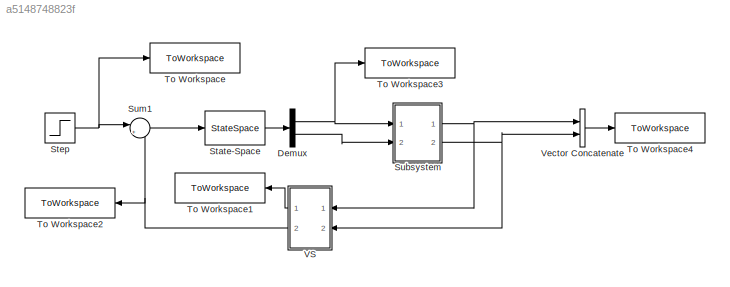
MODEL slx_a5148748823f
KIND model
CONFIG AbsTol = auto
CONFIG EnableMultiTasking = off
CONFIG FixedStep = auto
CONFIG MaxStep = auto
CONFIG MinStep = auto
CONFIG RelTol = 1e-3
CONFIG SampleTimeConstraint = Unconstrained
CONFIG SolverName = VariableStepAuto
CONFIG StartTime = 0.0
CONFIG StopTime = 10.0
BLOCK [Demux] Demux
  Outputs = 2
  Ports = [1, 2]
BLOCK [StateSpace] State-Space
  A = [0 1; -b -a]
  B = [0; 1]
  C = eye(2)
  D = zeros(2, 1)
  InitialCondition = [0 0]
  Ports = [1, 1]
BLOCK [Step] Step
  After = dist
  SampleTime = ss_st
  Time = t
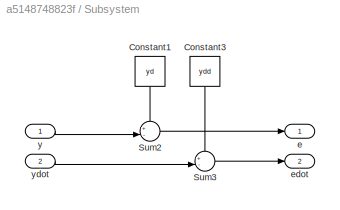
BLOCK [SubSystem] Subsystem
  Ports = [2, 2]
  RequestExecContextInheritance = off
BLOCK [Constant] Subsystem/Constant1
  NameLocation = left
  Value = yd
BLOCK [Constant] Subsystem/Constant3
  NameLocation = left
  Value = ydd
BLOCK [Sum] Subsystem/Sum2
  Inputs = +-|
  Ports = [2, 1]
BLOCK [Sum] Subsystem/Sum3
  Inputs = +-|
  Ports = [2, 1]
BLOCK [Outport] Subsystem/e
BLOCK [Outport] Subsystem/edot
  Port = 2
BLOCK [Inport] Subsystem/y
BLOCK [Inport] Subsystem/ydot
  Port = 2
BLOCK [Sum] Sum1
  Inputs = |++
  Ports = [2, 1]
BLOCK [ToWorkspace] To Workspace
  FixptAsFi = on
  MaxDataPoints = inf
  Ports = [1]
  SampleTime = -1
  SaveFormat = Timeseries
  VariableName = disturbance
BLOCK [ToWorkspace] To Workspace1
  FixptAsFi = on
  MaxDataPoints = inf
  NameLocation = top
  Ports = [1]
  SampleTime = -1
  SaveFormat = Timeseries
  VariableName = ss
BLOCK [ToWorkspace] To Workspace2
  FixptAsFi = on
  MaxDataPoints = inf
  NameLocation = top
  Ports = [1]
  SampleTime = -1
  SaveFormat = Timeseries
  VariableName = input
BLOCK [ToWorkspace] To Workspace3
  FixptAsFi = on
  MaxDataPoints = inf
  Ports = [1]
  SampleTime = -1
  SaveFormat = Timeseries
  VariableName = y
BLOCK [ToWorkspace] To Workspace4
  FixptAsFi = on
  MaxDataPoints = inf
  Ports = [1]
  SampleTime = -1
  SaveFormat = Timeseries
  VariableName = error
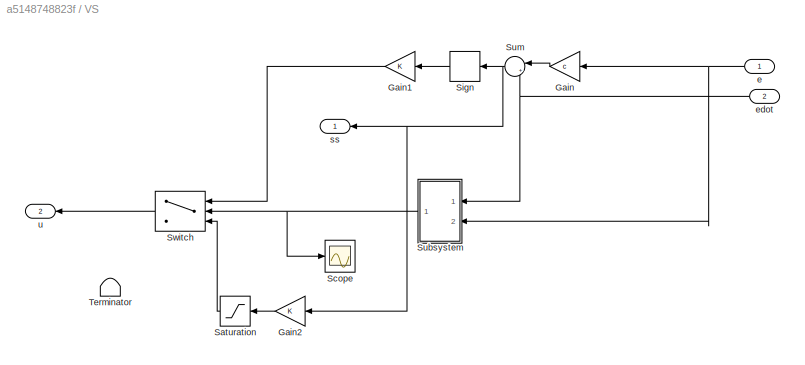
BLOCK [SubSystem] VS
  NameLocation = top
  Ports = [2, 2]
  RequestExecContextInheritance = off
BLOCK [Gain] VS/Gain
  Gain = c
  NameLocation = top
BLOCK [Gain] VS/Gain1
  Gain = K
  NameLocation = top
BLOCK [Gain] VS/Gain2
  Gain = K
  NameLocation = top
BLOCK [Saturate] VS/Saturation
  LowerLimit = -1000
  NameLocation = top
  UpperLimit = 1000
  ZeroCross = off
BLOCK [Scope] VS/Scope
  Floating = off
  NumInputPorts = 1
  Ports = [1]
  ScopeSpecificationString = Simulink.scopes.TimeScopeBlockCfg('CurrentConfiguration', extmgr.ConfigurationSet(extmgr.Configuration('Core','General UI',true),extmgr.Configuration('Core','Source UI',true),extmgr.Configuration('Sources','WiredSimulink',true),extmgr.Configuration('Visuals','Time Domain',true,'SerializedDisplays',{struct('MinYLimReal','-0.30129','MaxYLimReal','2.89444','YLabelReal','','MinYLimMag','0.00000','MaxY...<+1377ch>
BLOCK [Signum] VS/Sign
  NameLocation = top
  ZeroCross = off
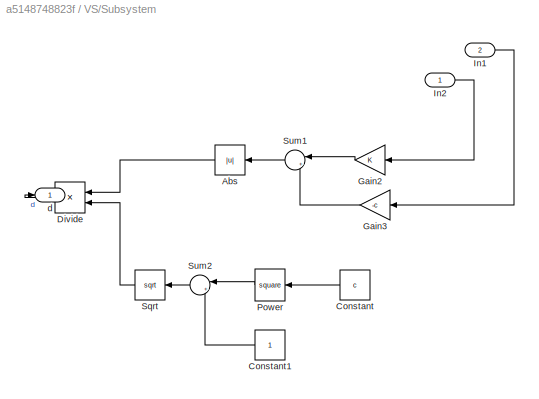
BLOCK [SubSystem] VS/Subsystem
  NameLocation = top
  Ports = [2, 1]
  RequestExecContextInheritance = off
BLOCK [Abs] VS/Subsystem/Abs
  NameLocation = top
  SaturateOnIntegerOverflow = off
BLOCK [Constant] VS/Subsystem/Constant
  NameLocation = top
  Value = c
BLOCK [Constant] VS/Subsystem/Constant1
  NameLocation = top
BLOCK [Product] VS/Subsystem/Divide
  Inputs = */
  NameLocation = top
  Ports = [2, 1]
BLOCK [Gain] VS/Subsystem/Gain2
  NameLocation = top
BLOCK [Gain] VS/Subsystem/Gain3
  Gain = -c
  NameLocation = top
BLOCK [Inport] VS/Subsystem/In1
  Port = 2
BLOCK [Inport] VS/Subsystem/In2
BLOCK [Math] VS/Subsystem/Power
  NameLocation = top
  Operator = square
  Ports = [1, 1]
BLOCK [Sqrt] VS/Subsystem/Sqrt
  NameLocation = top
BLOCK [Sum] VS/Subsystem/Sum1
  Inputs = |++
  NameLocation = top
  Ports = [2, 1]
BLOCK [Sum] VS/Subsystem/Sum2
  Inputs = |++
  NameLocation = top
  Ports = [2, 1]
BLOCK [Outport] VS/Subsystem/d
BLOCK [Sum] VS/Sum
  Inputs = |++
  NameLocation = top
  Ports = [2, 1]
BLOCK [Switch] VS/Switch
  Criteria = u2 > Threshold
  InputSameDT = off
  NameLocation = top
  SaturateOnIntegerOverflow = off
  Threshold = 0.5*b_w
  ZeroCross = off
BLOCK [Terminator] VS/Terminator
BLOCK [Inport] VS/e
  NameLocation = top
BLOCK [Inport] VS/edot
  NameLocation = top
  Port = 2
BLOCK [Outport] VS/ss
  NameLocation = top
BLOCK [Outport] VS/u
  NameLocation = top
  Port = 2
BLOCK [Concatenate] Vector Concatenate
  Ports = [2, 1]
NET Demux:1 -> Subsystem:1, To Workspace3:1
LINE Demux:2 -> Subsystem:2
LINE State-Space:1 -> Demux:1
NET Step:1 -> Sum1:1, To Workspace:1
LINE Subsystem/Constant1:1 -> Subsystem/Sum2:1
LINE Subsystem/Constant3:1 -> Subsystem/Sum3:1
LINE Subsystem/Sum2:1 -> Subsystem/e:1
LINE Subsystem/Sum3:1 -> Subsystem/edot:1
LINE Subsystem/y:1 -> Subsystem/Sum2:2
LINE Subsystem/ydot:1 -> Subsystem/Sum3:2
NET Subsystem:1 -> VS:1, Vector Concatenate:1
NET Subsystem:2 -> VS:2, Vector Concatenate:2
LINE Sum1:1 -> State-Space:1
LINE VS/Gain1:1 -> VS/Switch:1
LINE VS/Gain2:1 -> VS/Saturation:1
LINE VS/Gain:1 -> VS/Sum:1
LINE VS/Saturation:1 -> VS/Switch:3
LINE VS/Sign:1 -> VS/Gain1:1
LINE VS/Subsystem/Abs:1 -> VS/Subsystem/Divide:1
LINE VS/Subsystem/Constant1:1 -> VS/Subsystem/Sum2:2
LINE VS/Subsystem/Constant:1 -> VS/Subsystem/Power:1
LINE VS/Subsystem/Divide:1 -> VS/Subsystem/d:1
LINE VS/Subsystem/Gain2:1 -> VS/Subsystem/Sum1:1
LINE VS/Subsystem/Gain3:1 -> VS/Subsystem/Sum1:2
LINE VS/Subsystem/In1:1 -> VS/Subsystem/Gain3:1
LINE VS/Subsystem/In2:1 -> VS/Subsystem/Gain2:1
LINE VS/Subsystem/Power:1 -> VS/Subsystem/Sum2:1
LINE VS/Subsystem/Sqrt:1 -> VS/Subsystem/Divide:2
LINE VS/Subsystem/Sum1:1 -> VS/Subsystem/Abs:1
LINE VS/Subsystem/Sum2:1 -> VS/Subsystem/Sqrt:1
NET VS/Subsystem:1 -> VS/Scope:1, VS/Switch:2
NET VS/Sum:1 -> VS/Gain2:1, VS/Sign:1, VS/ss:1
LINE VS/Switch:1 -> VS/u:1
NET VS/e:1 -> VS/Gain:1, VS/Subsystem:2
NET VS/edot:1 -> VS/Subsystem:1, VS/Sum:2
LINE VS:1 -> To Workspace1:1
NET VS:2 -> Sum1:2, To Workspace2:1
LINE Vector Concatenate:1 -> To Workspace4:1
note: NET lines group one-source signal fan-out (src -> all destinations, sorted); 1:1 wires keep LINE
